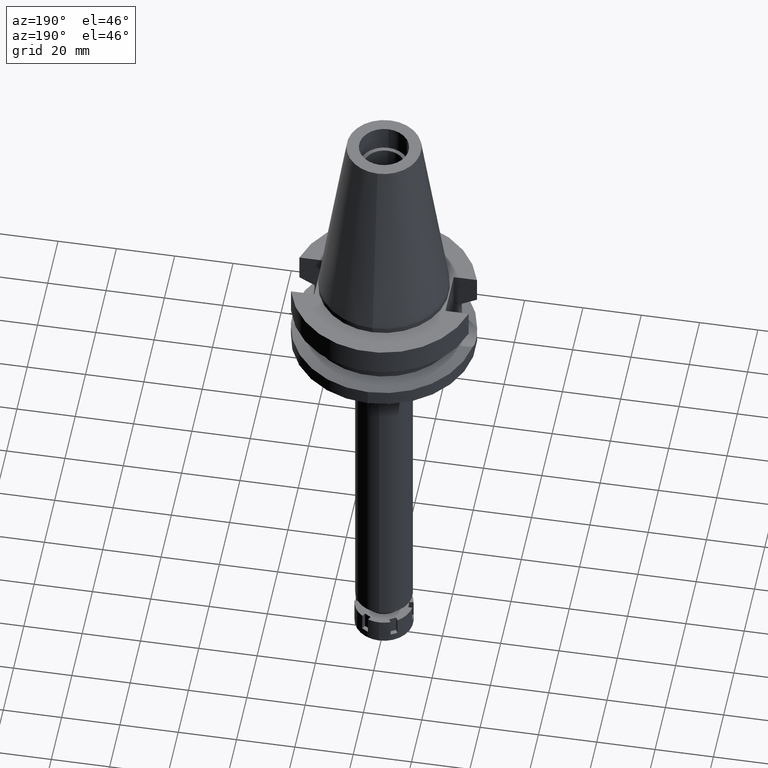
[diagram: clean part render]
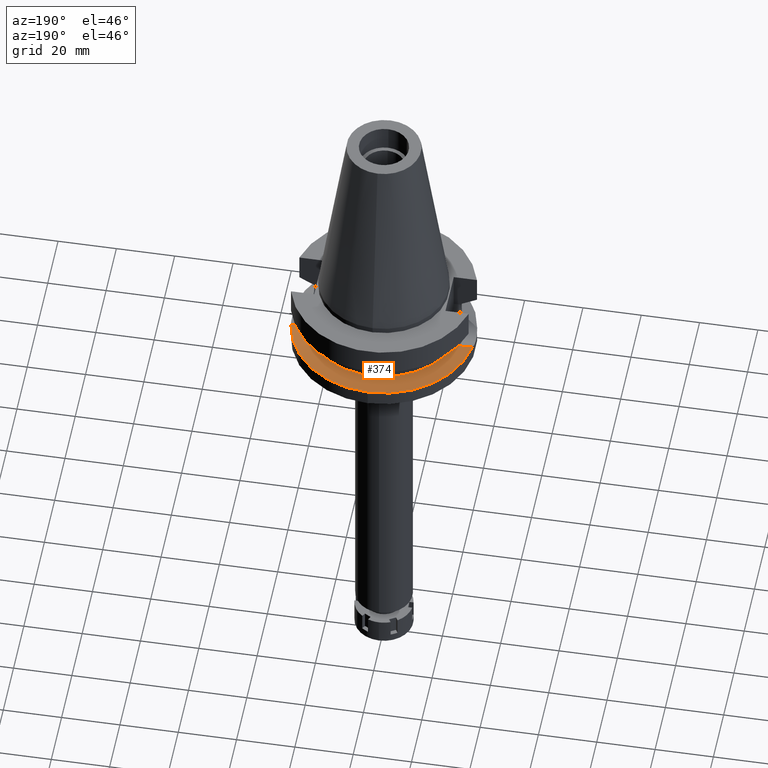
[diagram: same view with one face highlighted and labeled with its STEP entity id]
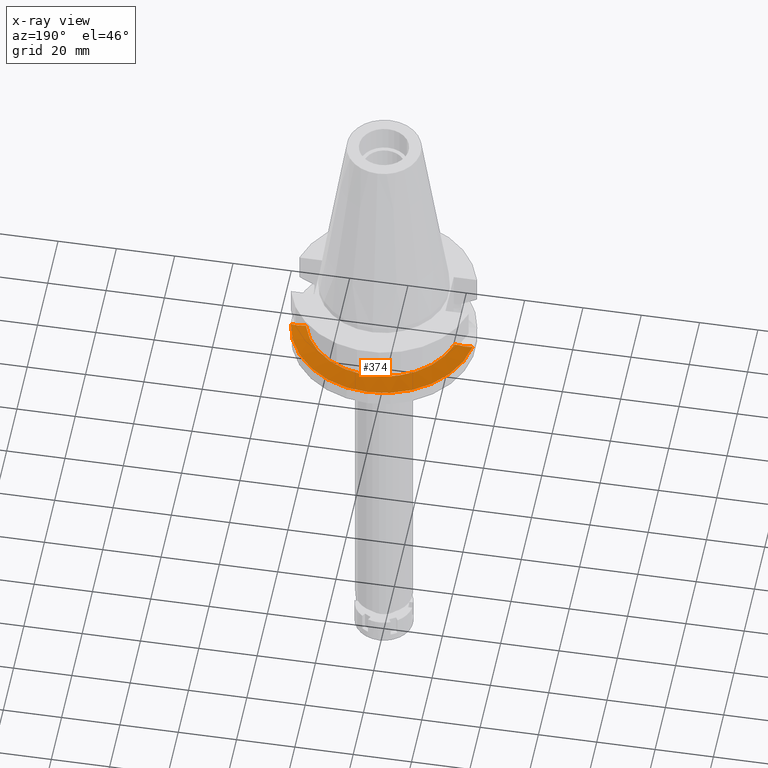
[diagram: x-ray of the same camera — body ghosted, the highlighted face saturated]
A machine part, auxiliary view. The second image highlights one B-rep face of the part: STEP entity #374.
The next image is the same camera in x-ray: the body ghosted, the highlighted face saturated — about 0% of this face is hidden behind the body in this view.
In plain terms, the highlighted conical surface has half-angle 60 deg.
Its self-contained STEP definition (entity closure, byte-faithful):
#38 = B_SPLINE_CURVE_WITH_KNOTS ( 'NONE', 3,
 ( #1050, #1937, #2195, #1677, #3619, #1081, #2770, #3300, #270, #791, #3064, #256, #782, #3314, #2802, #1377 ),
 .UNSPECIFIED., .F., .F.,
 ( 4, 2, 2, 1, 1, 1, 1, 2, 2, 4 ),
 ( 0.0000000000000000000, 0.2500000000000089928, 0.3750000000000125455, 0.4375000000000142109, 0.4687500000000151545, 0.4843750000000162093, 0.4921875000000172640, 0.4960937500000179856, 0.5000000000000187628, 1.000000000000000000 ),
 .UNSPECIFIED. ) ;
#79 = EDGE_CURVE ( 'NONE', #329, #1828, #1709, .T. ) ;
#256 = CARTESIAN_POINT ( 'NONE',  ( 28.61147131284274181, 5.992961896983674208, -20.32465693385939787 ) ) ;
#270 = CARTESIAN_POINT ( 'NONE',  ( 28.70603483733311379, 5.949350459096950594, -20.37296518973800730 ) ) ;
#329 = VERTEX_POINT ( 'NONE', #3131 ) ;
#341 = EDGE_CURVE ( 'NONE', #1842, #329, #2934, .T. ) ;
#347 = CARTESIAN_POINT ( 'NONE',  ( -31.17899877608999759, 4.485536235554000051, -21.63449434733000132 ) ) ;
#364 = CARTESIAN_POINT ( 'NONE',  ( -30.48765563221849817, 5.010036602323241439, -21.28253572810822192 ) ) ;
#374 = ADVANCED_FACE ( 'NONE', ( #2346 ), #2997, .T. ) ;
#476 = AXIS2_PLACEMENT_3D ( 'NONE', #2413, #3180, #688 ) ;
#594 = CARTESIAN_POINT ( 'NONE',  ( -29.65043040743777070, 5.512458371500321697, -20.85543983696959458 ) ) ;
#599 = DIRECTION ( 'NONE',  ( 0.0000000000000000000, 1.000000000000000000, 0.0000000000000000000 ) ) ;
#608 = CARTESIAN_POINT ( 'NONE',  ( -25.53175183775000079, 7.097862220092999941, -18.74774300138999905 ) ) ;
#688 = DIRECTION ( 'NONE',  ( 0.0000000000000000000, 1.000000000000000000, 0.0000000000000000000 ) ) ;
#782 = CARTESIAN_POINT ( 'NONE',  ( 28.60243128663216439, 5.997099682408958188, -20.32003883590952142 ) ) ;
#791 = CARTESIAN_POINT ( 'NONE',  ( 28.65096540873267728, 5.974821105849938085, -20.34483259701473656 ) ) ;
#890 = EDGE_CURVE ( 'NONE', #1828, #2276, #925, .T. ) ;
#925 = CIRCLE ( 'NONE', #1284, 31.50000000000001421 ) ;
#952 = DIRECTION ( 'NONE',  ( 0.0000000000000000000, 0.0000000000000000000, -1.000000000000000000 ) ) ;
#1050 = CARTESIAN_POINT ( 'NONE',  ( 31.17899877608999759, 4.485536235554000051, -21.63449434733000132 ) ) ;
#1081 = CARTESIAN_POINT ( 'NONE',  ( 29.21035332337397250, 5.704446040309164800, -20.63058844143724713 ) ) ;
#1099 = AXIS2_PLACEMENT_3D ( 'NONE', #1148, #3403, #599 ) ;
#1148 = CARTESIAN_POINT ( 'NONE',  ( 0.0000000000000000000, 0.0000000000000000000, -18.74774300138999905 ) ) ;
#1182 = CARTESIAN_POINT ( 'NONE',  ( -28.47103857320578868, 6.056645849723145680, -20.25303129519987877 ) ) ;
#1227 = EDGE_CURVE ( 'NONE', #2276, #2909, #2411, .T. ) ;
#1284 = AXIS2_PLACEMENT_3D ( 'NONE', #2615, #2658, #2400 ) ;
#1377 = CARTESIAN_POINT ( 'NONE',  ( 25.53175183775000079, 7.097862220092999941, -18.74774300138999905 ) ) ;
#1442 = CARTESIAN_POINT ( 'NONE',  ( -27.47914685062298901, 6.467275639251880648, -19.74622342314746248 ) ) ;
#1480 = CARTESIAN_POINT ( 'NONE',  ( -28.61166545030409125, 5.992789407523205547, -20.32485505205615794 ) ) ;
#1513 = CARTESIAN_POINT ( 'NONE',  ( 25.53175183775000079, 7.097862220092999941, -18.74774300138999905 ) ) ;
#1523 = CARTESIAN_POINT ( 'NONE',  ( -28.56972001874553158, 6.011981247124997374, -20.30343123526414217 ) ) ;
#1677 = CARTESIAN_POINT ( 'NONE',  ( 29.78681321427273687, 5.397290425658971991, -20.92493903984246373 ) ) ;
#1689 = ORIENTED_EDGE ( 'NONE', *, *, #1227, .F. ) ;
#1709 = B_SPLINE_CURVE_WITH_KNOTS ( 'NONE', 3,
 ( #608, #3472, #2646, #1442, #2013, #2851, #2864, #1182, #1523, #1480, #3178, #2353, #594, #364, #347 ),
 .UNSPECIFIED., .F., .F.,
 ( 4, 2, 2, 1, 1, 1, 2, 2, 4 ),
 ( 0.0000000000000000000, 0.2500000000000068279, 0.3750000000000111577, 0.4375000000000128786, 0.4687500000000141553, 0.4843750000000153211, 0.4921875000000156541, 0.5000000000000159872, 1.000000000000000000 ),
 .UNSPECIFIED. ) ;
#1816 = CARTESIAN_POINT ( 'NONE',  ( 0.0000000000000000000, 0.0000000000000000000, -20.19111867435999841 ) ) ;
#1828 = VERTEX_POINT ( 'NONE', #2402 ) ;
#1832 = ORIENTED_EDGE ( 'NONE', *, *, #1942, .F. ) ;
#1842 = VERTEX_POINT ( 'NONE', #1513 ) ;
#1937 = CARTESIAN_POINT ( 'NONE',  ( 30.82495603088097980, 4.754137365635453527, -21.45425332396078844 ) ) ;
#1938 = EDGE_LOOP ( 'NONE', ( #2518, #1832, #1689, #2423, #2561 ) ) ;
#1942 = EDGE_CURVE ( 'NONE', #2909, #1842, #38, .T. ) ;
#2013 = CARTESIAN_POINT ( 'NONE',  ( -27.73058514132772245, 6.369790665200595114, -19.87477189416667755 ) ) ;
#2195 = CARTESIAN_POINT ( 'NONE',  ( 30.43265429727554761, 5.016895131591423862, -21.25442900773640531 ) ) ;
#2276 = VERTEX_POINT ( 'NONE', #2990 ) ;
#2346 = FACE_OUTER_BOUND ( 'NONE', #1938, .T. ) ;
#2353 = CARTESIAN_POINT ( 'NONE',  ( -28.65196205009640451, 5.974267278330927411, -20.34543719519923854 ) ) ;
#2400 = DIRECTION ( 'NONE',  ( -0.9898094849552905306, 0.1423979757318985240, 0.0000000000000000000 ) ) ;
#2402 = CARTESIAN_POINT ( 'NONE',  ( -31.17899877608999759, 4.485536235554000051, -21.63449434733000132 ) ) ;
#2411 = CIRCLE ( 'NONE', #476, 31.50000000000000000 ) ;
#2413 = CARTESIAN_POINT ( 'NONE',  ( 0.0000000000000000000, 0.0000000000000000000, -21.63449434733000132 ) ) ;
#2423 = ORIENTED_EDGE ( 'NONE', *, *, #890, .F. ) ;
#2518 = ORIENTED_EDGE ( 'NONE', *, *, #341, .F. ) ;
#2561 = ORIENTED_EDGE ( 'NONE', *, *, #79, .F. ) ;
#2615 = CARTESIAN_POINT ( 'NONE',  ( 0.0000000000000000000, 0.0000000000000000000, -21.63449434733000132 ) ) ;
#2646 = CARTESIAN_POINT ( 'NONE',  ( -26.69525403462352386, 6.752329427508422910, -19.34501997465761036 ) ) ;
#2658 = DIRECTION ( 'NONE',  ( 0.0000000000000000000, 0.0000000000000000000, -1.000000000000000000 ) ) ;
#2770 = CARTESIAN_POINT ( 'NONE',  ( 29.03095915181242503, 5.794745990817506076, -20.53895508524692204 ) ) ;
#2802 = CARTESIAN_POINT ( 'NONE',  ( 26.70434439513175917, 6.775536619257185755, -19.35015941131790029 ) ) ;
#2851 = CARTESIAN_POINT ( 'NONE',  ( -28.09295360544222220, 6.220728545934645304, -20.05992310997011785 ) ) ;
#2864 = CARTESIAN_POINT ( 'NONE',  ( -28.27044059451381486, 6.145487970593529248, -20.15058199316972676 ) ) ;
#2909 = VERTEX_POINT ( 'NONE', #3595 ) ;
#2934 = CIRCLE ( 'NONE', #1099, 26.50000000000000000 ) ;
#2990 = CARTESIAN_POINT ( 'NONE',  ( 0.0000000000000000000, 31.50000000000000000, -21.63449434733000132 ) ) ;
#2997 = CONICAL_SURFACE ( 'NONE', #3280, 29.00000000000000000, 1.047197551196400456 ) ;
#3064 = CARTESIAN_POINT ( 'NONE',  ( 28.62728015988673036, 5.985709303255593916, -20.33273291110570113 ) ) ;
#3131 = CARTESIAN_POINT ( 'NONE',  ( -25.53175183775000079, 7.097862220092999941, -18.74774300138999905 ) ) ;
#3178 = CARTESIAN_POINT ( 'NONE',  ( -28.63955204544761202, 5.979984022131493937, -20.33909851539086233 ) ) ;
#3180 = DIRECTION ( 'NONE',  ( 0.0000000000000000000, 0.0000000000000000000, -1.000000000000000000 ) ) ;
#3280 = AXIS2_PLACEMENT_3D ( 'NONE', #1816, #952, #3490 ) ;
#3300 = CARTESIAN_POINT ( 'NONE',  ( 28.81538908637351426, 5.898152110362875788, -20.42882997072049633 ) ) ;
#3314 = CARTESIAN_POINT ( 'NONE',  ( 27.72563859724132840, 6.397707562367706657, -19.87213058912739072 ) ) ;
#3403 = DIRECTION ( 'NONE',  ( 0.0000000000000000000, 0.0000000000000000000, 1.000000000000000000 ) ) ;
#3472 = CARTESIAN_POINT ( 'NONE',  ( -26.13322156544358421, 6.932528498549726415, -19.05674652674831293 ) ) ;
#3490 = DIRECTION ( 'NONE',  ( 0.0000000000000000000, -1.000000000000000000, 0.0000000000000000000 ) ) ;
#3595 = CARTESIAN_POINT ( 'NONE',  ( 31.17899877608999759, 4.485536235554000051, -21.63449434733000132 ) ) ;
#3619 = CARTESIAN_POINT ( 'NONE',  ( 29.56196810617268866, 5.521793886282944541, -20.81015792863685832 ) ) ;